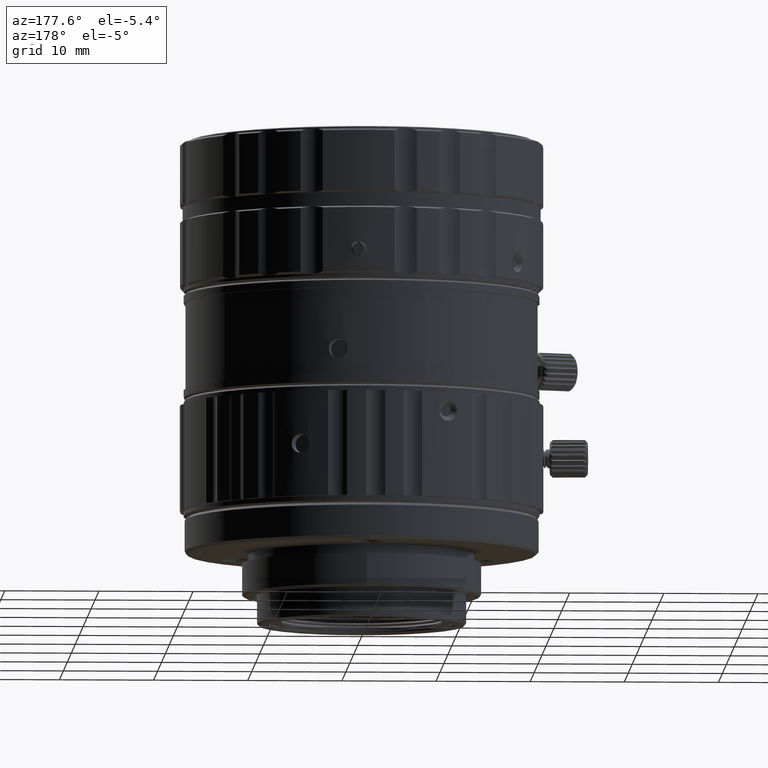
[diagram: clean part render]
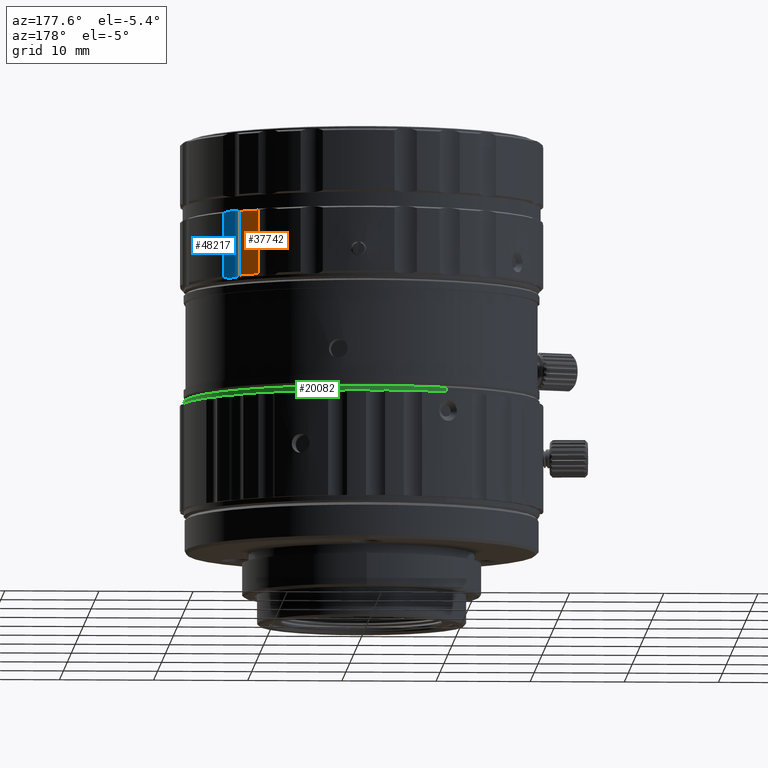
[diagram: same view with three faces highlighted in distinct colors, each labeled with its STEP entity id]
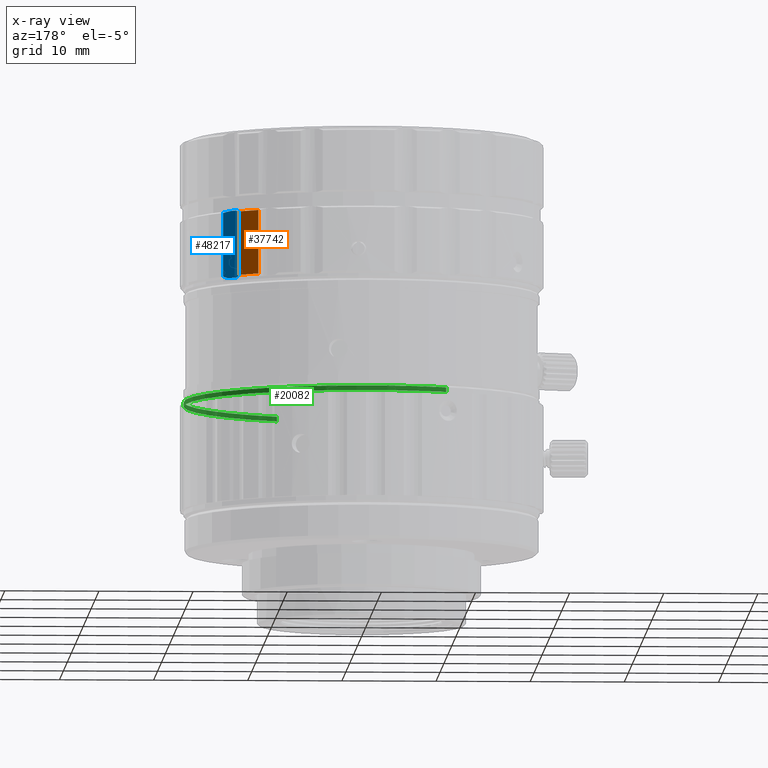
[diagram: x-ray of the same camera — body ghosted, the three highlighted faces saturated]
A machine part, auxiliary view with three faces highlighted in distinct colors.
The next image is the same camera in x-ray (body ghosted, the three faces saturated) — at least one of them is partly hidden behind the body in this view.
Their STEP definitions:

[orange] entity #37742 — the highlighted cylindrical surface (partial cylindrical patch) has radius 19.3 mm, axis along (0, 0, 1).
#106 = AXIS2_PLACEMENT_3D ( 'NONE', #17811, #22614, #33270 ) ;
#1689 = FACE_OUTER_BOUND ( 'NONE', #9955, .T. ) ;
#3305 = VECTOR ( 'NONE', #41409, 1000.000000000000000 ) ;
#3335 = DIRECTION ( 'NONE',  ( 0.7035600838713809146, 0.7106357775843370472, 0.000000000000000000 ) ) ;
#4135 = EDGE_CURVE ( 'NONE', #12834, #14731, #25985, .T. ) ;
#4599 = EDGE_CURVE ( 'NONE', #6717, #12834, #15016, .T. ) ;
#6579 = CIRCLE ( 'NONE', #106, 19.30000000000000426 ) ;
#6717 = VERTEX_POINT ( 'NONE', #26551 ) ;
#9536 = DIRECTION ( 'NONE',  ( 0.000000000000000000, 0.000000000000000000, 1.000000000000000000 ) ) ;
#9955 = EDGE_LOOP ( 'NONE', ( #40246, #23160, #30455, #22798 ) ) ;
#11773 = AXIS2_PLACEMENT_3D ( 'NONE', #22624, #38103, #3335 ) ;
#12816 = CARTESIAN_POINT ( 'NONE',  ( 11.61144293605149969, 15.41636769615200109, 26.70000000000000284 ) ) ;
#12834 = VERTEX_POINT ( 'NONE', #12816 ) ;
#13609 = EDGE_CURVE ( 'NONE', #14731, #19660, #6579, .T. ) ;
#14731 = VERTEX_POINT ( 'NONE', #50150 ) ;
#15016 = CIRCLE ( 'NONE', #11773, 19.30000000000000071 ) ;
#15315 = DIRECTION ( 'NONE',  ( -1.686958492962579999E-13, 1.411478356473930040E-13, 1.000000000000000000 ) ) ;
#17811 = CARTESIAN_POINT ( 'NONE',  ( 0.000000000000000000, 0.000000000000000000, 33.47679491924300521 ) ) ;
#18079 = CARTESIAN_POINT ( 'NONE',  ( 13.57870961871599924, 13.71527050737899955, 26.70000000000000284 ) ) ;
#19660 = VERTEX_POINT ( 'NONE', #40595 ) ;
#22614 = DIRECTION ( 'NONE',  ( 0.000000000000000000, 0.000000000000000000, -1.000000000000000000 ) ) ;
#22624 = CARTESIAN_POINT ( 'NONE',  ( 0.000000000000000000, 0.000000000000000000, 26.70000000000000284 ) ) ;
#22641 = LINE ( 'NONE', #18079, #3305 ) ;
#22798 = ORIENTED_EDGE ( 'NONE', *, *, #46864, .F. ) ;
#23160 = ORIENTED_EDGE ( 'NONE', *, *, #4135, .T. ) ;
#23561 = AXIS2_PLACEMENT_3D ( 'NONE', #40490, #9536, #48083 ) ;
#25574 = VECTOR ( 'NONE', #15315, 1000.000000000000000 ) ;
#25985 = LINE ( 'NONE', #45480, #25574 ) ;
#26551 = CARTESIAN_POINT ( 'NONE',  ( 13.57870961871599924, 13.71527050737899955, 26.70000000000000284 ) ) ;
#30455 = ORIENTED_EDGE ( 'NONE', *, *, #13609, .T. ) ;
#33270 = DIRECTION ( 'NONE',  ( 0.6016291676709749625, 0.7987755282978628024, 0.000000000000000000 ) ) ;
#37742 = ADVANCED_FACE ( 'NONE', ( #1689 ), #48335, .T. ) ;
#38103 = DIRECTION ( 'NONE',  ( 0.000000000000000000, 0.000000000000000000, 1.000000000000000000 ) ) ;
#40246 = ORIENTED_EDGE ( 'NONE', *, *, #4599, .T. ) ;
#40490 = CARTESIAN_POINT ( 'NONE',  ( 0.000000000000000000, 0.000000000000000000, 25.20500000000000185 ) ) ;
#40595 = CARTESIAN_POINT ( 'NONE',  ( 13.57870961871189941, 13.71527050737910081, 33.47679491924500184 ) ) ;
#41409 = DIRECTION ( 'NONE',  ( -1.170014982379149981E-13, 1.328577385133560098E-13, 1.000000000000000000 ) ) ;
#45480 = CARTESIAN_POINT ( 'NONE',  ( 11.61144293605149969, 15.41636769615200109, 26.70000000000000284 ) ) ;
#46864 = EDGE_CURVE ( 'NONE', #6717, #19660, #22641, .T. ) ;
#48083 = DIRECTION ( 'NONE',  ( 0.9982912023899936926, -0.05843522251810588652, 0.000000000000000000 ) ) ;
#48335 = CYLINDRICAL_SURFACE ( 'NONE', #23561, 19.30000000000000782 ) ;
#50150 = CARTESIAN_POINT ( 'NONE',  ( 11.61144293604979971, 15.41636769615110047, 33.47679491924220230 ) ) ;

[blue] entity #48217 — the highlighted cylindrical surface (edge-blend (fillet) strip) has radius 3 mm, axis along (0, 0, 1).
#880 = CARTESIAN_POINT ( 'NONE',  ( 14.73740805427040002, 12.14984789377620089, 26.50000000000000000 ) ) ;
#2113 = CARTESIAN_POINT ( 'NONE',  ( 15.20584217848580089, 11.88580513229659985, 33.47679491924409945 ) ) ;
#2640 = CARTESIAN_POINT ( 'NONE',  ( 13.78629658508719835, 13.21922942035160098, 26.50000000000000000 ) ) ;
#3074 = LINE ( 'NONE', #37332, #5042 ) ;
#3077 = CARTESIAN_POINT ( 'NONE',  ( 15.20584217847890152, 11.88580513230289881, 26.70000000000000284 ) ) ;
#3305 = VECTOR ( 'NONE', #41409, 1000.000000000000000 ) ;
#3368 = EDGE_CURVE ( 'NONE', #25890, #13820, #3074, .T. ) ;
#5042 = VECTOR ( 'NONE', #29974, 1000.000000000000000 ) ;
#5281 = DIRECTION ( 'NONE',  ( 0.000000000000000000, 0.000000000000000000, -1.000000000000000000 ) ) ;
#5862 = CIRCLE ( 'NONE', #26120, 3.000000000000000000 ) ;
#6169 = CARTESIAN_POINT ( 'NONE',  ( 15.20584217847890152, 11.88580513230289881, 26.70000000000000284 ) ) ;
#6717 = VERTEX_POINT ( 'NONE', #26551 ) ;
#6875 = CARTESIAN_POINT ( 'NONE',  ( 15.03970172510230086, 11.96489954186280080, 26.61827760682150057 ) ) ;
#7643 = CARTESIAN_POINT ( 'NONE',  ( 13.75930989686339956, 13.27030505859940135, 26.51587089487109949 ) ) ;
#8413 = CARTESIAN_POINT ( 'NONE',  ( 16.43880526004760156, 14.62072780752760082, 41.89999999999999858 ) ) ;
#10419 = EDGE_CURVE ( 'NONE', #19660, #39800, #34628, .T. ) ;
#10468 = CARTESIAN_POINT ( 'NONE',  ( 14.81386295608266757, 12.06251795651484571, 33.59226497308439718 ) ) ;
#10678 = CARTESIAN_POINT ( 'NONE',  ( 14.73740805427040002, 12.14984789377620089, 26.50000000000000000 ) ) ;
#12465 = CARTESIAN_POINT ( 'NONE',  ( 13.59737469878150051, 13.65631254864480049, 26.67123437044519818 ) ) ;
#13541 = CARTESIAN_POINT ( 'NONE',  ( 14.19714999731639793, 12.62699219741250012, 33.65000000000299707 ) ) ;
#13655 = EDGE_CURVE ( 'NONE', #36985, #25890, #36595, .T. ) ;
#13820 = VERTEX_POINT ( 'NONE', #29173 ) ;
#15068 = B_SPLINE_CURVE_WITH_KNOTS ( 'NONE', 3,
 ( #23883, #12465, #46437, #16269, #7643, #15271 ),
 .UNSPECIFIED., .F., .F.,
 ( 4, 1, 1, 4 ),
 ( 0.000000000000000000, 0.3333333333333000081, 0.6666666666667000474, 1.000000000000000000 ),
 .UNSPECIFIED. ) ;
#15271 = CARTESIAN_POINT ( 'NONE',  ( 13.78629658508719835, 13.21922942035160098, 26.50000000000000000 ) ) ;
#15432 = CARTESIAN_POINT ( 'NONE',  ( 14.19714999731639793, 12.62699219741250012, 33.65000000000299707 ) ) ;
#16269 = CARTESIAN_POINT ( 'NONE',  ( 13.70762671168580127, 13.37526885243100061, 26.55170034505860244 ) ) ;
#16286 = DIRECTION ( 'NONE',  ( 0.000000000000000000, 0.000000000000000000, 1.000000000000000000 ) ) ;
#16406 = CARTESIAN_POINT ( 'NONE',  ( 13.57870961871189941, 13.71527050737910081, 33.47679491924500184 ) ) ;
#16980 = ORIENTED_EDGE ( 'NONE', *, *, #10419, .T. ) ;
#17594 = CARTESIAN_POINT ( 'NONE',  ( 14.47008433324893950, 12.32011866441574632, 33.65000000000299707 ) ) ;
#18079 = CARTESIAN_POINT ( 'NONE',  ( 13.57870961871599924, 13.71527050737899955, 26.70000000000000284 ) ) ;
#19601 = DIRECTION ( 'NONE',  ( 0.8353279303851831594, -0.5497519883714896416, 0.000000000000000000 ) ) ;
#19660 = VERTEX_POINT ( 'NONE', #40595 ) ;
#20571 = ORIENTED_EDGE ( 'NONE', *, *, #46081, .F. ) ;
#21203 = CARTESIAN_POINT ( 'NONE',  ( 13.70848310431553152, 13.30535103300392130, 33.59226497308367243 ) ) ;
#22641 = LINE ( 'NONE', #18079, #3305 ) ;
#23510 = ORIENTED_EDGE ( 'NONE', *, *, #47926, .T. ) ;
#23883 = CARTESIAN_POINT ( 'NONE',  ( 13.57870961871599924, 13.71527050737899955, 26.70000000000000284 ) ) ;
#23898 = FACE_OUTER_BOUND ( 'NONE', #25752, .T. ) ;
#24080 = DIRECTION ( 'NONE',  ( -0.5671324019255717941, -0.8236266379168001306, 0.000000000000000000 ) ) ;
#25262 = CARTESIAN_POINT ( 'NONE',  ( 13.92421566137984712, 12.93386573039948395, 33.65000000000299707 ) ) ;
#25752 = EDGE_LOOP ( 'NONE', ( #27145, #41300, #42019, #20571, #44154, #16980, #23510 ) ) ;
#25890 = VERTEX_POINT ( 'NONE', #6169 ) ;
#26120 = AXIS2_PLACEMENT_3D ( 'NONE', #40054, #5281, #24080 ) ;
#26168 = CARTESIAN_POINT ( 'NONE',  ( 14.78533696820619880, 12.11684502714869893, 26.51598786140160158 ) ) ;
#26551 = CARTESIAN_POINT ( 'NONE',  ( 13.57870961871599924, 13.71527050737899955, 26.70000000000000284 ) ) ;
#27145 = ORIENTED_EDGE ( 'NONE', *, *, #3368, .F. ) ;
#29173 = CARTESIAN_POINT ( 'NONE',  ( 15.20584217848580089, 11.88580513229659985, 33.47679491924409945 ) ) ;
#29974 = DIRECTION ( 'NONE',  ( 1.797274607460259958E-13, -2.099122618367999969E-13, 1.000000000000000000 ) ) ;
#30306 = EDGE_CURVE ( 'NONE', #36985, #31329, #5862, .T. ) ;
#31329 = VERTEX_POINT ( 'NONE', #2640 ) ;
#34628 = B_SPLINE_CURVE_WITH_KNOTS ( 'NONE', 3,
 ( #16406, #21203, #25262, #47331 ),
 .UNSPECIFIED., .F., .F.,
 ( 4, 4 ),
 ( 0.000000000000000000, 1.000000000000000000 ),
 .UNSPECIFIED. ) ;
#36595 = B_SPLINE_CURVE_WITH_KNOTS ( 'NONE', 3,
 ( #10678, #26168, #41623, #6875, #37836, #3077 ),
 .UNSPECIFIED., .F., .F.,
 ( 4, 1, 1, 4 ),
 ( 0.000000000000000000, 0.3333333333333000081, 0.6666666666667000474, 1.000000000000000000 ),
 .UNSPECIFIED. ) ;
#36985 = VERTEX_POINT ( 'NONE', #880 ) ;
#37332 = CARTESIAN_POINT ( 'NONE',  ( 15.20584217847890152, 11.88580513230289881, 26.70000000000000284 ) ) ;
#37836 = CARTESIAN_POINT ( 'NONE',  ( 15.14956090021889956, 11.91117796602549994, 26.67128354002269930 ) ) ;
#38233 = AXIS2_PLACEMENT_3D ( 'NONE', #8413, #16286, #19601 ) ;
#38885 = CYLINDRICAL_SURFACE ( 'NONE', #38233, 3.000000000000001332 ) ;
#39125 = B_SPLINE_CURVE_WITH_KNOTS ( 'NONE', 3,
 ( #13541, #17594, #10468, #2113 ),
 .UNSPECIFIED., .F., .F.,
 ( 4, 4 ),
 ( 0.000000000000000000, 1.000000000000000000 ),
 .UNSPECIFIED. ) ;
#39800 = VERTEX_POINT ( 'NONE', #15432 ) ;
#40054 = CARTESIAN_POINT ( 'NONE',  ( 16.43880526004760156, 14.62072780752760082, 26.50000000000000000 ) ) ;
#40595 = CARTESIAN_POINT ( 'NONE',  ( 13.57870961871189941, 13.71527050737910081, 33.47679491924500184 ) ) ;
#41300 = ORIENTED_EDGE ( 'NONE', *, *, #13655, .F. ) ;
#41409 = DIRECTION ( 'NONE',  ( -1.170014982379149981E-13, 1.328577385133560098E-13, 1.000000000000000000 ) ) ;
#41623 = CARTESIAN_POINT ( 'NONE',  ( 14.88403376320460048, 12.05301030863089906, 26.55203073619420095 ) ) ;
#42019 = ORIENTED_EDGE ( 'NONE', *, *, #30306, .T. ) ;
#44154 = ORIENTED_EDGE ( 'NONE', *, *, #46864, .T. ) ;
#46081 = EDGE_CURVE ( 'NONE', #6717, #31329, #15068, .T. ) ;
#46437 = CARTESIAN_POINT ( 'NONE',  ( 13.63795985637430164, 13.54079350154369976, 26.61816205457650142 ) ) ;
#46864 = EDGE_CURVE ( 'NONE', #6717, #19660, #22641, .T. ) ;
#47331 = CARTESIAN_POINT ( 'NONE',  ( 14.19714999731639793, 12.62699219741250012, 33.65000000000299707 ) ) ;
#47926 = EDGE_CURVE ( 'NONE', #39800, #13820, #39125, .T. ) ;
#48217 = ADVANCED_FACE ( 'NONE', ( #23898 ), #38885, .F. ) ;

[green] entity #20082 — the highlighted cylindrical surface (partial cylindrical patch) has radius 18.9 mm, axis along (0, 0, 1).
#413 = CIRCLE ( 'NONE', #40096, 18.90000000000000568 ) ;
#964 = LINE ( 'NONE', #24293, #25450 ) ;
#2516 = EDGE_CURVE ( 'NONE', #48121, #29849, #964, .T. ) ;
#3524 = CYLINDRICAL_SURFACE ( 'NONE', #45117, 18.90000000000000568 ) ;
#4085 = LINE ( 'NONE', #42889, #38830 ) ;
#4108 = CARTESIAN_POINT ( 'NONE',  ( 8.285214674312680216, -16.98720747505468509, 14.00000000000000000 ) ) ;
#4993 = DIRECTION ( 'NONE',  ( 0.000000000000000000, 0.000000000000000000, 1.000000000000000000 ) ) ;
#5724 = EDGE_LOOP ( 'NONE', ( #18245, #36314, #32744, #49748, #9471 ) ) ;
#8338 = DIRECTION ( 'NONE',  ( 0.000000000000000000, 0.000000000000000000, 1.000000000000000000 ) ) ;
#8959 = CARTESIAN_POINT ( 'NONE',  ( -1.719617966736020021E-13, -5.116329946272849536E-14, 14.50000000000000000 ) ) ;
#9471 = ORIENTED_EDGE ( 'NONE', *, *, #21673, .T. ) ;
#13966 = CARTESIAN_POINT ( 'NONE',  ( -1.719617966736020021E-13, -5.116329946272849536E-14, 14.50000000000000000 ) ) ;
#14350 = EDGE_CURVE ( 'NONE', #41865, #26762, #4085, .T. ) ;
#14526 = CARTESIAN_POINT ( 'NONE',  ( -8.285214674312687322, 16.98720747505469220, 14.00000000000000000 ) ) ;
#18245 = ORIENTED_EDGE ( 'NONE', *, *, #2516, .F. ) ;
#18261 = DIRECTION ( 'NONE',  ( 0.000000000000000000, 0.000000000000000000, -1.000000000000000000 ) ) ;
#20082 = ADVANCED_FACE ( 'NONE', ( #30683 ), #3524, .T. ) ;
#21447 = CARTESIAN_POINT ( 'NONE',  ( -1.569924745759019887E-15, 9.055256544599938830E-16, 14.00000000000000000 ) ) ;
#21673 = EDGE_CURVE ( 'NONE', #41583, #29849, #46833, .T. ) ;
#23312 = CARTESIAN_POINT ( 'NONE',  ( -1.569924745759019887E-15, 9.055256544599938830E-16, -0.5250000000000000222 ) ) ;
#23821 = CARTESIAN_POINT ( 'NONE',  ( 8.285214674312669558, -16.98720747505466377, 14.50000000000000000 ) ) ;
#23945 = DIRECTION ( 'NONE',  ( 0.000000000000000000, 0.000000000000000000, -1.000000000000000000 ) ) ;
#24188 = CIRCLE ( 'NONE', #30666, 18.89999999999999858 ) ;
#24293 = CARTESIAN_POINT ( 'NONE',  ( 8.285214674312683769, -16.98720747505469220, -0.5250000000000000222 ) ) ;
#24745 = CARTESIAN_POINT ( 'NONE',  ( 16.98720747489319649, 8.285214674233955634, 14.50000000000000000 ) ) ;
#24895 = AXIS2_PLACEMENT_3D ( 'NONE', #8959, #23945, #32538 ) ;
#25450 = VECTOR ( 'NONE', #4993, 1000.000000000000000 ) ;
#26123 = DIRECTION ( 'NONE',  ( -0.8987940462991901303, -0.4383711467890300528, 0.000000000000000000 ) ) ;
#26762 = VERTEX_POINT ( 'NONE', #34620 ) ;
#29749 = EDGE_CURVE ( 'NONE', #48121, #41865, #413, .T. ) ;
#29849 = VERTEX_POINT ( 'NONE', #23821 ) ;
#30666 = AXIS2_PLACEMENT_3D ( 'NONE', #13966, #18261, #26123 ) ;
#30683 = FACE_OUTER_BOUND ( 'NONE', #5724, .T. ) ;
#32538 = DIRECTION ( 'NONE',  ( -0.8987940462991901303, -0.4383711467890300528, 0.000000000000000000 ) ) ;
#32744 = ORIENTED_EDGE ( 'NONE', *, *, #14350, .T. ) ;
#32764 = EDGE_CURVE ( 'NONE', #26762, #41583, #24188, .T. ) ;
#34620 = CARTESIAN_POINT ( 'NONE',  ( -8.285214674312696204, 16.98720747505470641, 14.50000000000000000 ) ) ;
#36314 = ORIENTED_EDGE ( 'NONE', *, *, #29749, .T. ) ;
#36662 = DIRECTION ( 'NONE',  ( 0.000000000000000000, 0.000000000000000000, 1.000000000000000000 ) ) ;
#38607 = DIRECTION ( 'NONE',  ( 0.000000000000000000, 0.000000000000000000, 1.000000000000000000 ) ) ;
#38830 = VECTOR ( 'NONE', #38607, 1000.000000000000000 ) ;
#39305 = DIRECTION ( 'NONE',  ( -0.4383711467890308300, 0.8987940462991897972, 0.000000000000000000 ) ) ;
#40096 = AXIS2_PLACEMENT_3D ( 'NONE', #21447, #36662, #39305 ) ;
#41583 = VERTEX_POINT ( 'NONE', #24745 ) ;
#41865 = VERTEX_POINT ( 'NONE', #14526 ) ;
#42889 = CARTESIAN_POINT ( 'NONE',  ( -8.285214674312687322, 16.98720747505469220, -0.5250000000000000222 ) ) ;
#45117 = AXIS2_PLACEMENT_3D ( 'NONE', #23312, #8338, #46126 ) ;
#46126 = DIRECTION ( 'NONE',  ( -0.4383711467890308300, 0.8987940462991897972, 0.000000000000000000 ) ) ;
#46833 = CIRCLE ( 'NONE', #24895, 18.89999999999999858 ) ;
#48121 = VERTEX_POINT ( 'NONE', #4108 ) ;
#49748 = ORIENTED_EDGE ( 'NONE', *, *, #32764, .T. ) ;